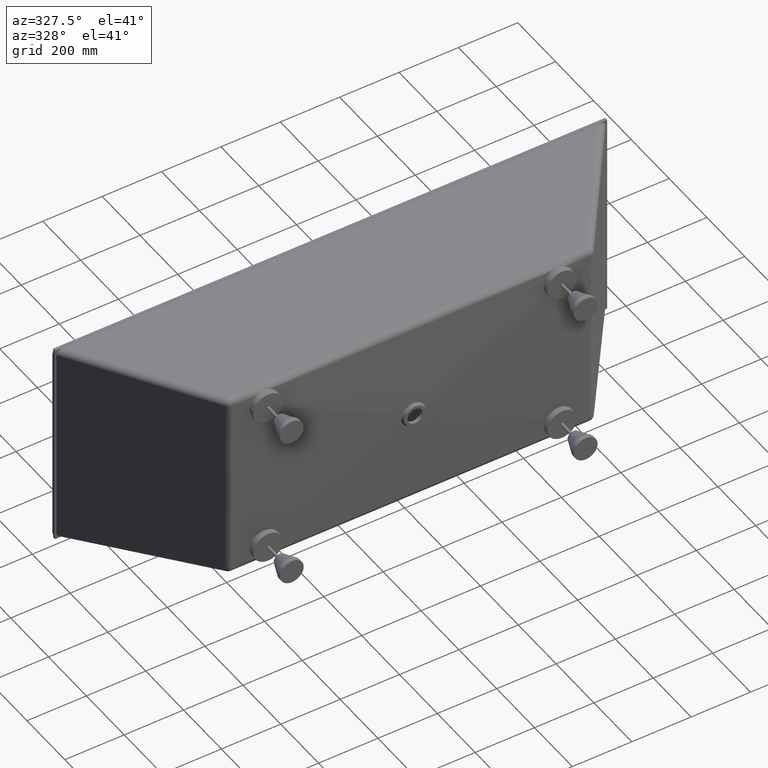
[diagram: clean part render]
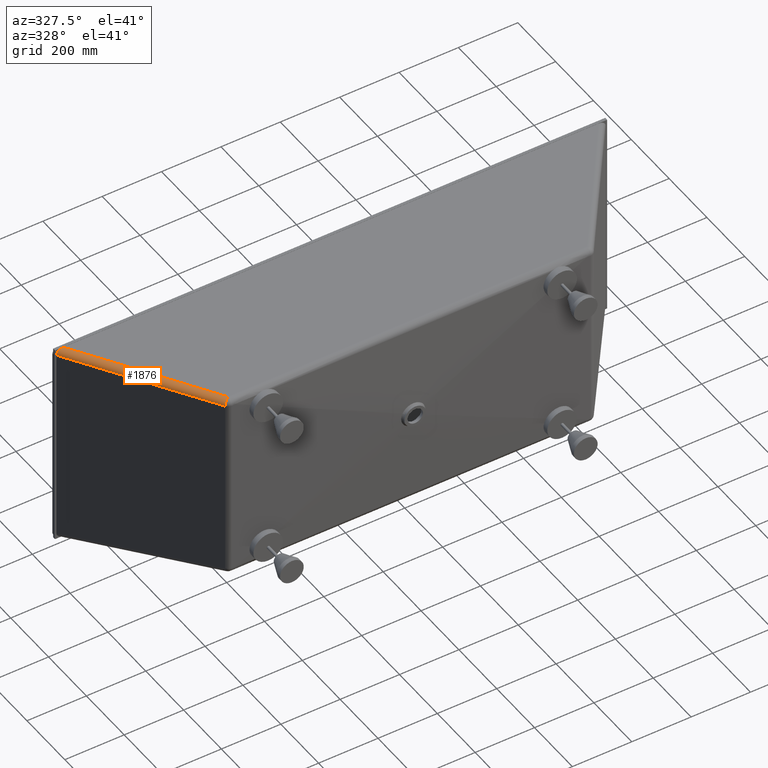
[diagram: same view with one face highlighted and labeled with its STEP entity id]
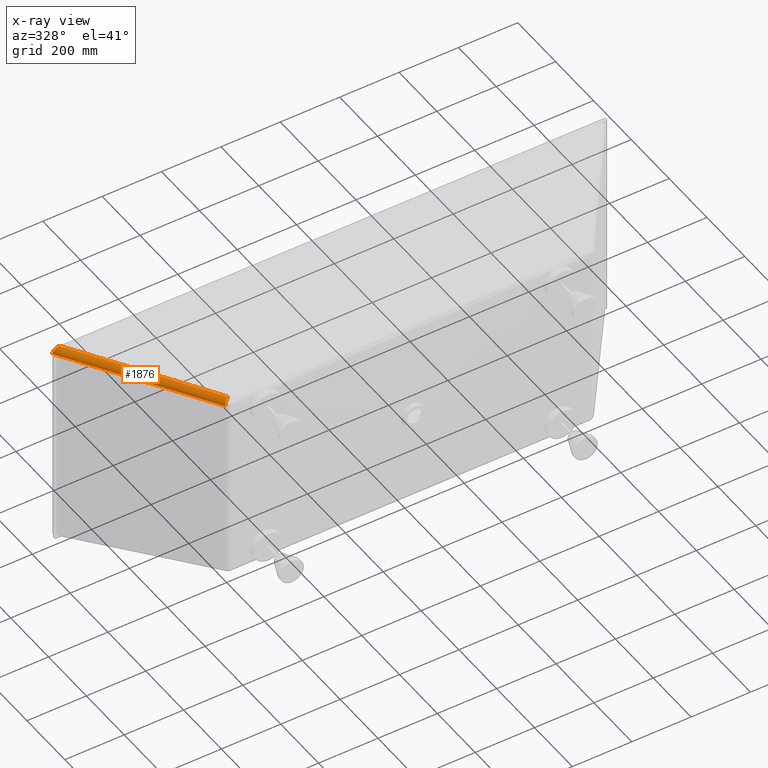
[diagram: x-ray of the same camera — body ghosted, the highlighted face saturated]
A machine part, auxiliary view. The second image highlights one B-rep face of the part: STEP entity #1876.
The next image is the same camera in x-ray: the body ghosted, the highlighted face saturated — about 0% of this face is hidden behind the body in this view.
In plain terms, the highlighted cylindrical surface (edge-blend (fillet) strip) has radius 20 mm, axis along (0.5902, -0.8053, -0.0571).
Its self-contained STEP definition (entity closure, byte-faithful):
#39 = LINE ( 'NONE', #7478, #7740 ) ;
#525 = CARTESIAN_POINT ( 'NONE',  ( -620.9868439940617000, -424.9254378329813400, 305.6767879291041900 ) ) ;
#739 = CARTESIAN_POINT ( 'NONE',  ( -604.8551075440721000, -414.5180108610283000, 325.6266776078288700 ) ) ;
#1149 = EDGE_CURVE ( 'NONE', #5190, #7121, #39, .T. ) ;
#1237 = AXIS2_PLACEMENT_3D ( 'NONE', #2532, #8396, #8324 ) ;
#1501 = ORIENTED_EDGE ( 'NONE', *, *, #6518, .F. ) ;
#1709 = AXIS2_PLACEMENT_3D ( 'NONE', #6238, #6083, #6026 ) ;
#1876 = ADVANCED_FACE ( 'NONE', ( #6719 ), #2202, .T. ) ;
#2191 = CARTESIAN_POINT ( 'NONE',  ( -908.6389925722487500, -1.110223024625156500E-013, 355.0251180944267200 ) ) ;
#2202 = CYLINDRICAL_SURFACE ( 'NONE', #1237, 20.00000000000002100 ) ;
#2532 = CARTESIAN_POINT ( 'NONE',  ( -271.4263734402567800, -868.0720106356739100, 273.4094910803479500 ) ) ;
#2912 = DIRECTION ( 'NONE',  ( 0.5901508273742233100, -0.8052703225138596600, -0.05711137039105403100 ) ) ;
#3389 = LINE ( 'NONE', #4182, #6912 ) ;
#3585 = EDGE_CURVE ( 'NONE', #5718, #7121, #9468, .T. ) ;
#4182 = CARTESIAN_POINT ( 'NONE',  ( -287.5581098902480900, -879.8943234004428900, 273.4094910803478300 ) ) ;
#4222 = CARTESIAN_POINT ( 'NONE',  ( -932.3979213657499900, -1.110223024625156500E-013, 335.8133438037837100 ) ) ;
#4229 = DIRECTION ( 'NONE',  ( -0.5901508273742233100, 0.8052703225138596600, 0.05711137039105403100 ) ) ;
#4230 = CARTESIAN_POINT ( 'NONE',  ( -908.6389925722487500, -1.110223024625156500E-013, 355.0251180944267200 ) ) ;
#4276 = CARTESIAN_POINT ( 'NONE',  ( -932.3979213657499900, -1.110223024625156500E-013, 335.8133438037837100 ) ) ;
#4301 = CARTESIAN_POINT ( 'NONE',  ( -922.6745254714642200, 0.0000000000000000000, 355.0251180944263200 ) ) ;
#4478 = CARTESIAN_POINT ( 'NONE',  ( -932.3979213657499900, 0.0000000000000000000, 347.1626555699928100 ) ) ;
#4712 = EDGE_CURVE ( 'NONE', #6550, #5190, #8529, .T. ) ;
#5190 = VERTEX_POINT ( 'NONE', #2191 ) ;
#5718 = VERTEX_POINT ( 'NONE', #525 ) ;
#6026 = DIRECTION ( 'NONE',  ( 0.8065868224995655900, 0.5911156382384535900, 0.0000000000000000000 ) ) ;
#6083 = DIRECTION ( 'NONE',  ( -0.5901508273742234200, 0.8052703225138597700, 0.05711137039105404500 ) ) ;
#6238 = CARTESIAN_POINT ( 'NONE',  ( -604.8551075440702800, -413.1031250682123600, 305.6767879291041900 ) ) ;
#6518 = EDGE_CURVE ( 'NONE', #5718, #6550, #3389, .T. ) ;
#6550 = VERTEX_POINT ( 'NONE', #4222 ) ;
#6663 = ORIENTED_EDGE ( 'NONE', *, *, #3585, .T. ) ;
#6719 = FACE_OUTER_BOUND ( 'NONE', #9464, .T. ) ;
#6856 = ORIENTED_EDGE ( 'NONE', *, *, #4712, .F. ) ;
#6912 = VECTOR ( 'NONE', #4229, 1000.000000000000200 ) ;
#7121 = VERTEX_POINT ( 'NONE', #739 ) ;
#7478 = CARTESIAN_POINT ( 'NONE',  ( -271.4263734402573500, -869.4868964284916000, 293.3593807590725100 ) ) ;
#7740 = VECTOR ( 'NONE', #2912, 1000.000000000000200 ) ;
#8324 = DIRECTION ( 'NONE',  ( 0.8065868224995655900, 0.5911156382384535900, 0.0000000000000000000 ) ) ;
#8396 = DIRECTION ( 'NONE',  ( 0.5901508273742234200, -0.8052703225138597700, -0.05711137039105404500 ) ) ;
#8529 =( BOUNDED_CURVE ( )  B_SPLINE_CURVE ( 3, ( #4276, #4478, #4301, #4230 ),
 .UNSPECIFIED., .F., .T. ) 
 B_SPLINE_CURVE_WITH_KNOTS ( ( 4, 4 ),
 ( 3.063820449969567600, 4.592786523020792300 ),
 .UNSPECIFIED. ) 
 CURVE ( )  GEOMETRIC_REPRESENTATION_ITEM ( )  RATIONAL_B_SPLINE_CURVE ( ( 1.000000000000000000, 0.8144935182389456700, 0.8144935182389456700, 1.000000000000000000 ) ) 
 REPRESENTATION_ITEM ( '' )  );
#8875 = ORIENTED_EDGE ( 'NONE', *, *, #1149, .F. ) ;
#9464 = EDGE_LOOP ( 'NONE', ( #1501, #6663, #8875, #6856 ) ) ;
#9468 = CIRCLE ( 'NONE', #1709, 20.00000000000002100 ) ;